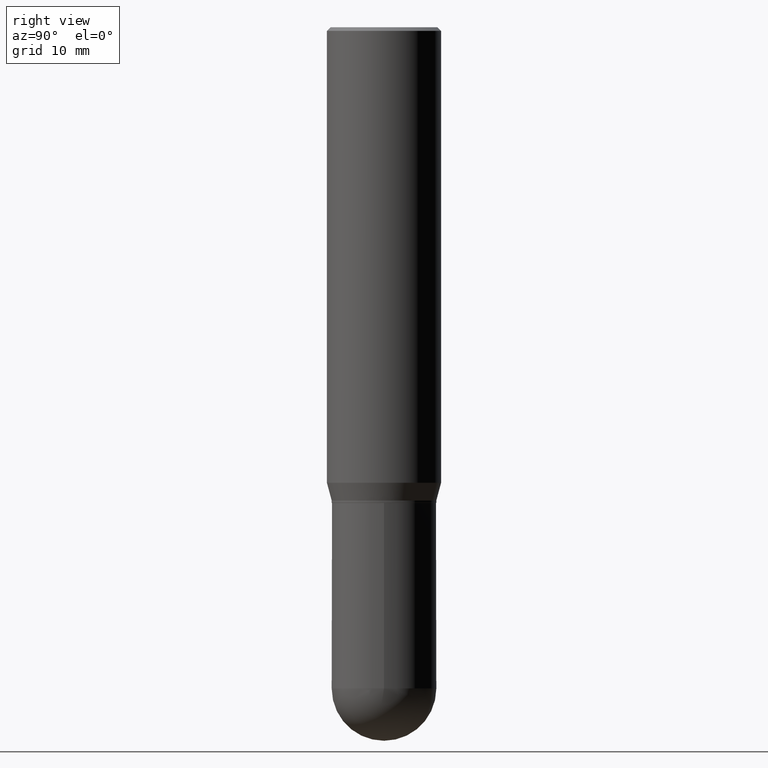
[diagram: clean part render]
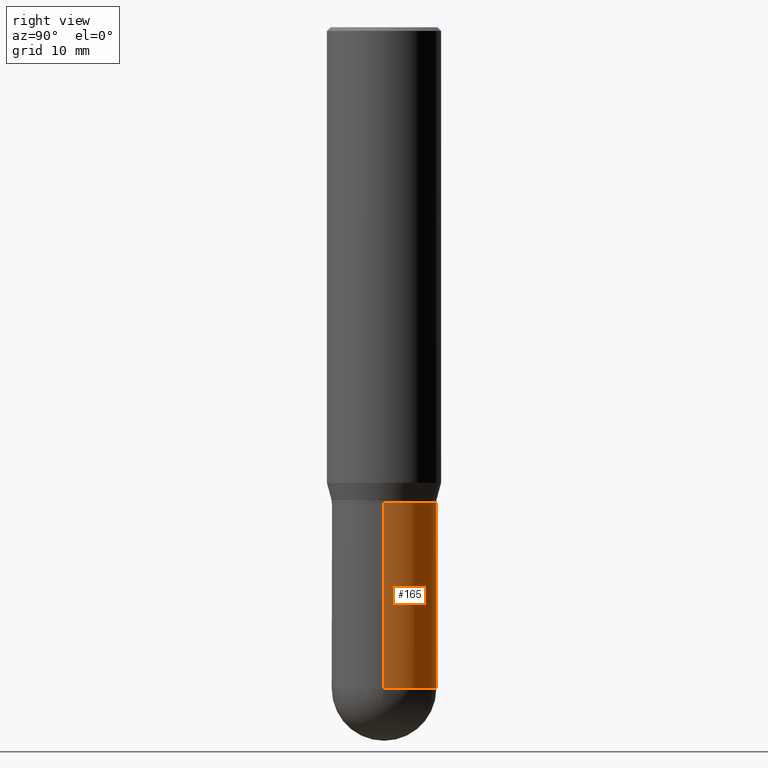
[diagram: same view with one face highlighted and labeled with its STEP entity id]
A machine part, right view. The second image highlights one B-rep face of the part: STEP entity #165.
In plain terms, the highlighted cylindrical surface (partial cylindrical patch) has radius 5.5004 mm, axis along (-0, 0, 1).
Its self-contained STEP definition (entity closure, byte-faithful):
#14 = CARTESIAN_POINT ( 'NONE',  ( 0.2165500000000000480, -9.725433982314102974E-15, -2.736249999999999183 ) ) ;
#15 = ORIENTED_EDGE ( 'NONE', *, *, #441, .T. ) ;
#17 = AXIS2_PLACEMENT_3D ( 'NONE', #31, #145, #185 ) ;
#26 = CIRCLE ( 'NONE', #49, 0.2165500000000000203 ) ;
#31 = CARTESIAN_POINT ( 'NONE',  ( 6.691414020924076964E-29, -9.553565813409554172E-15, -2.736249999999999183 ) ) ;
#33 = CARTESIAN_POINT ( 'NONE',  ( -0.2165500000000000480, 1.538680294288497294E-15, -1.065195393794700063E-29 ) ) ;
#49 = AXIS2_PLACEMENT_3D ( 'NONE', #433, #394, #55 ) ;
#55 = DIRECTION ( 'NONE',  ( 1.000000000000000000, -6.982962677686264344E-15, 0.000000000000000000 ) ) ;
#65 = EDGE_CURVE ( 'NONE', #424, #338, #115, .T. ) ;
#70 = DIRECTION ( 'NONE',  ( 1.000000000000000000, -6.982962677686266711E-15, 4.876176775795935793E-29 ) ) ;
#101 = LINE ( 'NONE', #108, #356 ) ;
#105 = VERTEX_POINT ( 'NONE', #210 ) ;
#108 = CARTESIAN_POINT ( 'NONE',  ( 0.2165500000000000480, -1.512160567852961414E-15, 1.055936080798610176E-29 ) ) ;
#112 = CYLINDRICAL_SURFACE ( 'NONE', #336, 0.2165500000000000480 ) ;
#115 = LINE ( 'NONE', #33, #118 ) ;
#118 = VECTOR ( 'NONE', #255, 39.37007874015748143 ) ;
#141 = ORIENTED_EDGE ( 'NONE', *, *, #354, .F. ) ;
#142 = CIRCLE ( 'NONE', #196, 0.2165500000000000480 ) ;
#144 = DIRECTION ( 'NONE',  ( 1.000000000000000000, -6.982962677686263555E-15, 0.000000000000000000 ) ) ;
#145 = DIRECTION ( 'NONE',  ( -2.445468806185136597E-29, 3.491481338843145583E-15, 1.000000000000000000 ) ) ;
#163 = CARTESIAN_POINT ( 'NONE',  ( -0.2165500000000000480, -6.674593120172645055E-15, -2.736249999999999183 ) ) ;
#165 = ADVANCED_FACE ( 'NONE', ( #460 ), #112, .T. ) ;
#168 = DIRECTION ( 'NONE',  ( -2.445468806185136877E-29, 3.491481338843145188E-15, 1.000000000000000000 ) ) ;
#185 = DIRECTION ( 'NONE',  ( 1.000000000000000000, -6.982962677686263555E-15, 0.000000000000000000 ) ) ;
#196 = AXIS2_PLACEMENT_3D ( 'NONE', #309, #443, #144 ) ;
#210 = CARTESIAN_POINT ( 'NONE',  ( 1.512160567853028073E-15, 0.2165499999999904723, -2.736249999999999627 ) ) ;
#221 = VERTEX_POINT ( 'NONE', #369 ) ;
#223 = EDGE_CURVE ( 'NONE', #105, #424, #321, .T. ) ;
#254 = CARTESIAN_POINT ( 'NONE',  ( 0.000000000000000000, 0.000000000000000000, 0.000000000000000000 ) ) ;
#255 = DIRECTION ( 'NONE',  ( -2.445468806185136877E-29, 3.491481338843145188E-15, 1.000000000000000000 ) ) ;
#275 = ORIENTED_EDGE ( 'NONE', *, *, #65, .T. ) ;
#309 = CARTESIAN_POINT ( 'NONE',  ( 6.691414020924076964E-29, -9.553565813409554172E-15, -2.736249999999999183 ) ) ;
#321 = CIRCLE ( 'NONE', #17, 0.2165500000000000480 ) ;
#336 = AXIS2_PLACEMENT_3D ( 'NONE', #254, #360, #70 ) ;
#338 = VERTEX_POINT ( 'NONE', #420 ) ;
#354 = EDGE_CURVE ( 'NONE', #221, #338, #26, .T. ) ;
#356 = VECTOR ( 'NONE', #168, 39.37007874015748143 ) ;
#360 = DIRECTION ( 'NONE',  ( -2.445468806185136597E-29, 3.491481338843145583E-15, 1.000000000000000000 ) ) ;
#369 = CARTESIAN_POINT ( 'NONE',  ( 0.2165500000000000203, -8.385141583365692530E-15, -1.968499999999999694 ) ) ;
#394 = DIRECTION ( 'NONE',  ( -2.445468806185136597E-29, 3.491481338843145583E-15, 1.000000000000000000 ) ) ;
#405 = VERTEX_POINT ( 'NONE', #14 ) ;
#420 = CARTESIAN_POINT ( 'NONE',  ( -0.2165500000000000203, -6.674593120172645055E-15, -1.968499999999999694 ) ) ;
#424 = VERTEX_POINT ( 'NONE', #163 ) ;
#430 = ORIENTED_EDGE ( 'NONE', *, *, #489, .F. ) ;
#433 = CARTESIAN_POINT ( 'NONE',  ( 4.813905344975440714E-29, -6.872981015512730918E-15, -1.968499999999999694 ) ) ;
#441 = EDGE_CURVE ( 'NONE', #405, #105, #142, .T. ) ;
#443 = DIRECTION ( 'NONE',  ( -2.445468806185136597E-29, 3.491481338843145583E-15, 1.000000000000000000 ) ) ;
#444 = EDGE_LOOP ( 'NONE', ( #479, #275, #141, #430, #15 ) ) ;
#460 = FACE_OUTER_BOUND ( 'NONE', #444, .T. ) ;
#479 = ORIENTED_EDGE ( 'NONE', *, *, #223, .T. ) ;
#489 = EDGE_CURVE ( 'NONE', #405, #221, #101, .T. ) ;